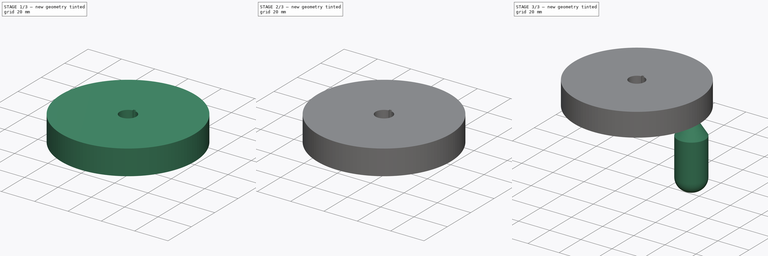
[diagram: build sequence overview — one tinted view per stage of 3, left to right]
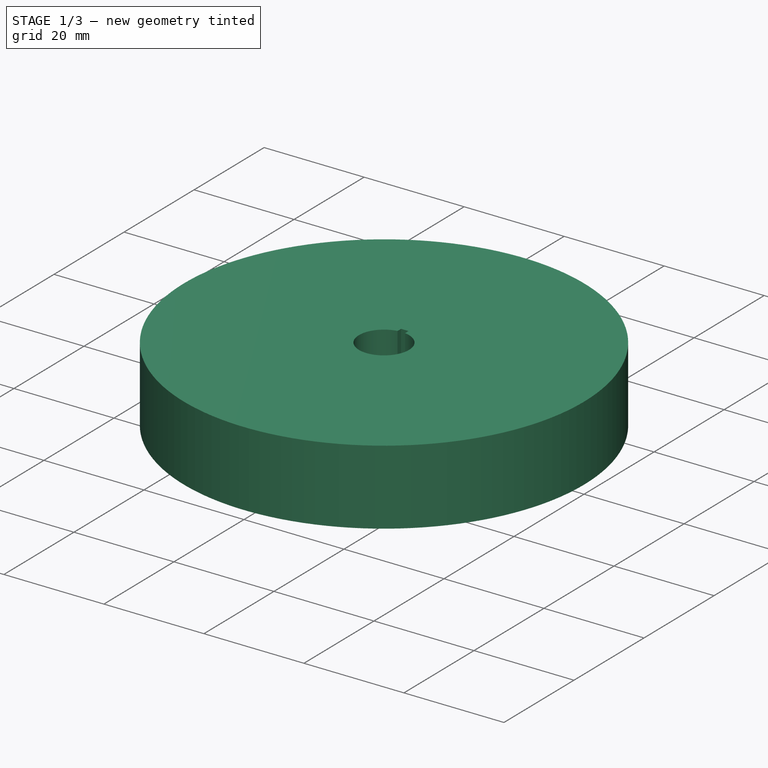
[diagram: stage 1 of 3 — iso view after this stage's code; geometry added in this stage tinted green]
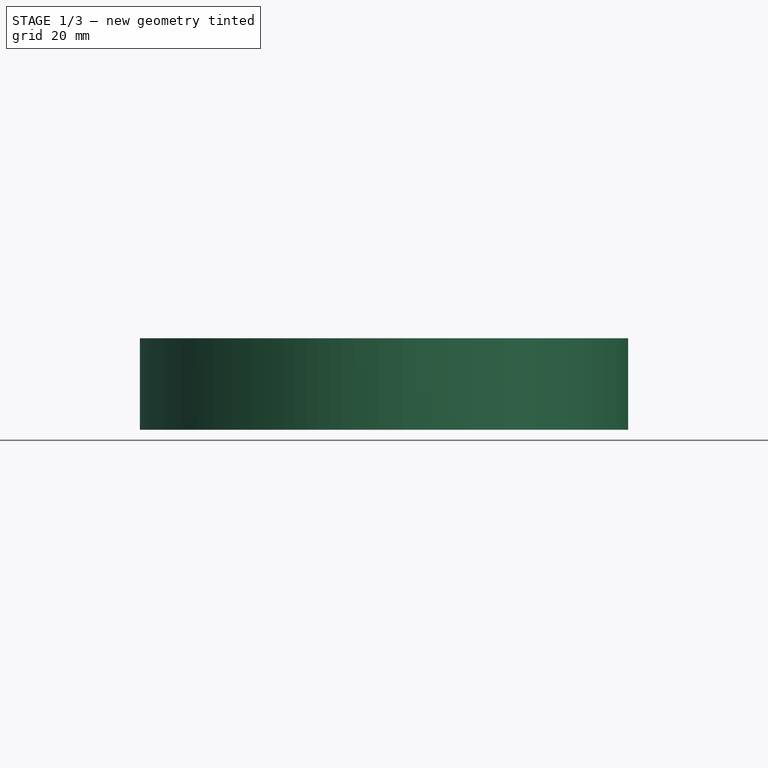
[diagram: stage 1 of 3 — front view after this stage's code; geometry added in this stage tinted green]
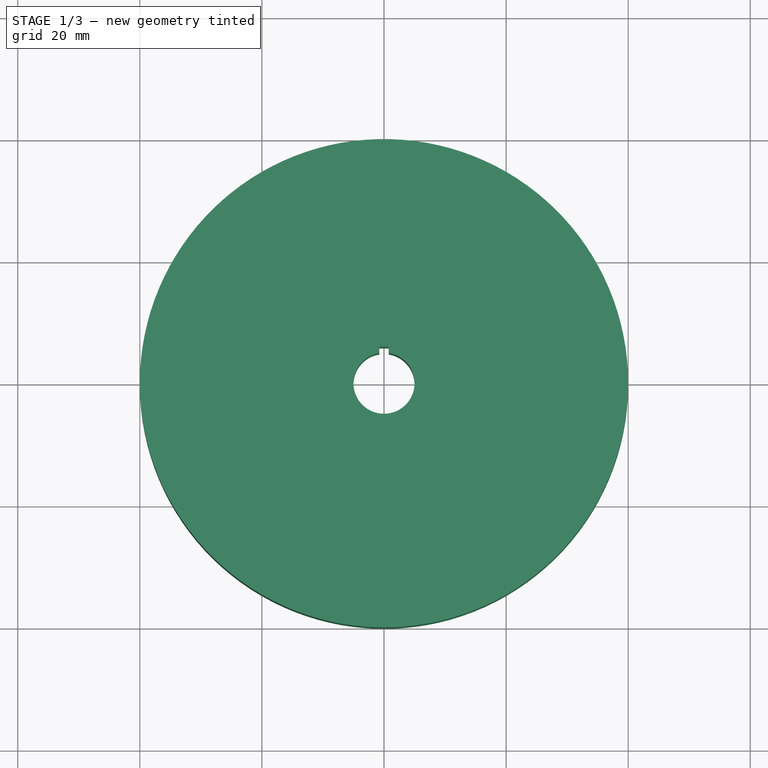
[diagram: stage 1 of 3 — top view after this stage's code; geometry added in this stage tinted green]
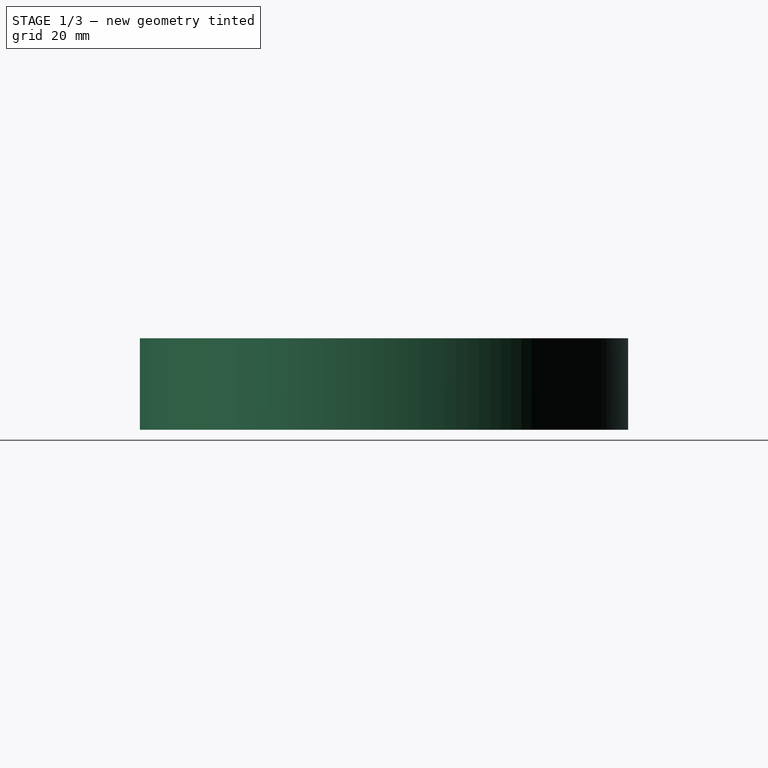
[diagram: stage 1 of 3 — right view after this stage's code; geometry added in this stage tinted green]
FCSTD DOCUMENT  (FreeCAD 0.21R33771 (Git))
Label: Volantino10x80
License: All rights reserved
LicenseURL: http://en.wikipedia.org/wiki/All_rights_reserved
objects: Sketcher::SketchObject×3, PartDesign::Chamfer×2, PartDesign::Pad×1, PartDesign::Pocket×1, PartDesign::Revolution×1, PartDesign::Body×1
note: 14 computed .brp shape members not serialized (recipe doc carries the construction recipe); baked Part::Feature solids carry a one-line shape summary decoded from their .brp

FEATURE [Sketcher::SketchObject] Sketch
  FullyConstrained = true
  MapMode = 5
  Support = -> [XY_Plane]
  sketch-geometry (5):
    g0: Circle CenterX=0 CenterY=0 CenterZ=0 NormalX=0 NormalY=0 NormalZ=1 AngleXU=0 Radius=40
    g1: ArcOfCircle CenterX=0 CenterY=0 CenterZ=0 NormalX=0 NormalY=0 NormalZ=1 AngleXU=0 Radius=5 StartAngle=1.72136 EndAngle=7.70341
    g2: LineSegment StartX=-0.75 StartY=4.94343 StartZ=0 EndX=-0.75 EndY=5.94343 EndZ=0
    g3: LineSegment StartX=-0.75 StartY=5.94343 StartZ=0 EndX=0.75 EndY=5.94343 EndZ=0
    g4: LineSegment StartX=0.75 StartY=5.94343 StartZ=0 EndX=0.75 EndY=4.94343 EndZ=0
  constraints (14):
    c: Coincident(g0,g-1)
    c: Radius(g0) = 40
    c: Coincident(g1,g0)
    c: Radius(g1) = 5
    c: Vertical(g2)
    c: Coincident(g3,g2)
    c: Horizontal(g3)
    c: Coincident(g4,g3)
    c: Vertical(g4)
    c: DistanceX(g3,g3) = 1.5
    c: DistanceY(g4,g4) = 1
    c: Equal(g2,g4)
    c: Coincident(g1,g4)
    c: Coincident(g1,g2)
FEATURE [PartDesign::Pad] Pad
  Direction = (0,0,1)
  Length = 15
  Length2 = 10
  Profile = -> Sketch
  ReferenceAxis = -> Sketch [N_Axis]
  Type = 0
FEATURE [PartDesign::Chamfer] Chamfer
  Angle = 45
  Base = -> Pad
  BaseFeature = -> Pad
  ChamferType = 0
  FlipDirection = false
  Size = 13
  Size2 = 1
  SupportTransform = false
  UseAllEdges = false
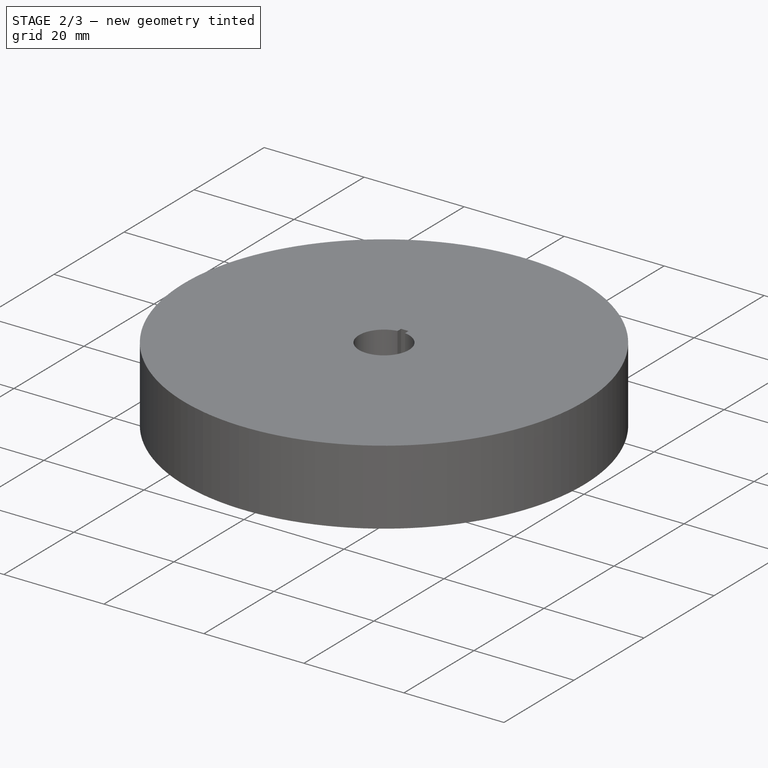
[diagram: stage 2 of 3 — iso view after this stage's code; geometry added in this stage tinted green]
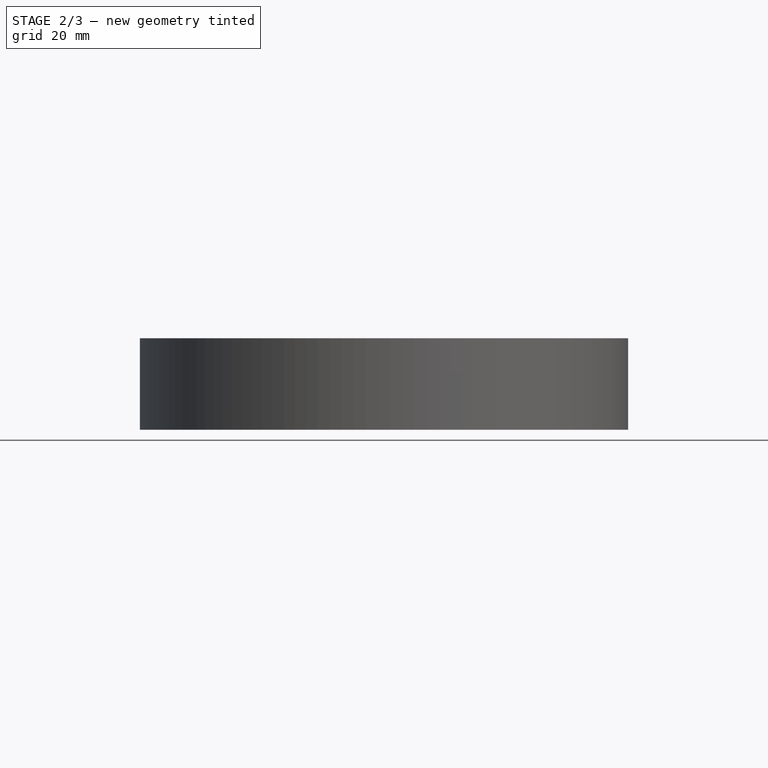
[diagram: stage 2 of 3 — front view after this stage's code; geometry added in this stage tinted green]
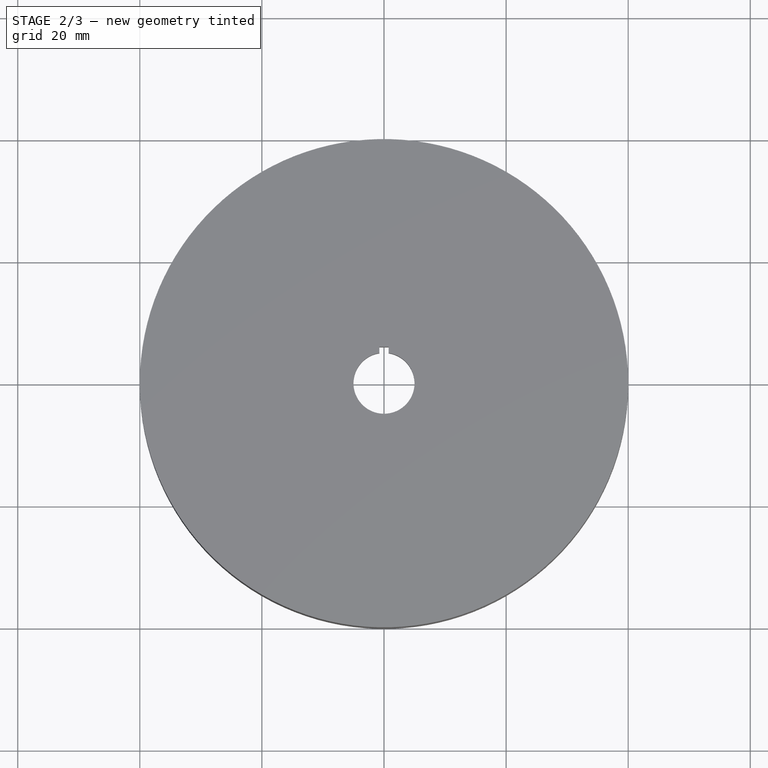
[diagram: stage 2 of 3 — top view after this stage's code; geometry added in this stage tinted green]
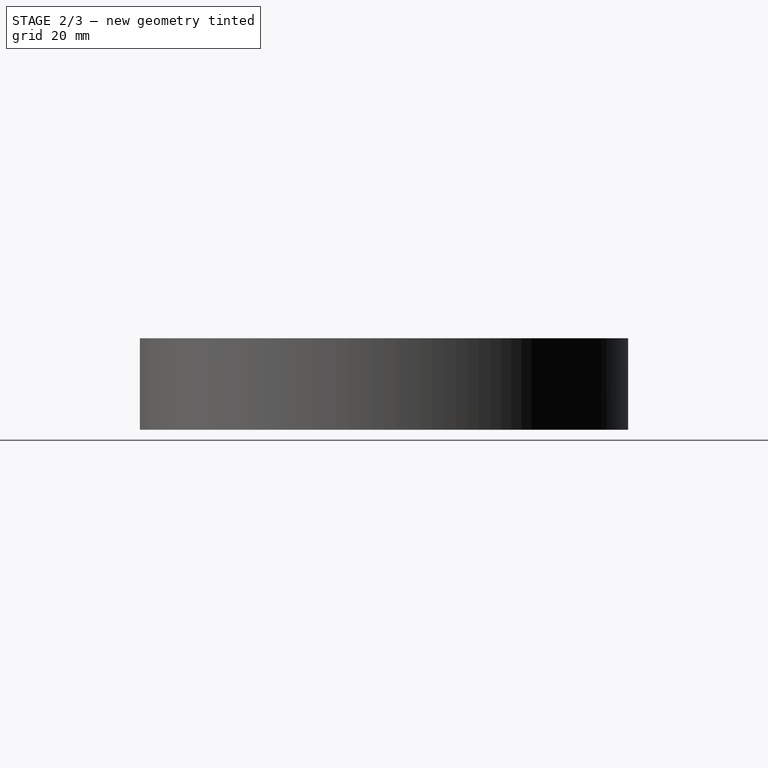
[diagram: stage 2 of 3 — right view after this stage's code; geometry added in this stage tinted green]
FEATURE [Sketcher::SketchObject] Sketch002
  FullyConstrained = false
  MapMode = 5
  Placement = pos=(0,0,0) rot=(1,0,0;1.5708rad)
  Support = -> [XZ_Plane]
  sketch-geometry (7):
    g0: LineSegment StartX=35 StartY=0 StartZ=0 EndX=35 EndY=-40 EndZ=0
    g1: LineSegment StartX=44 StartY=-32 StartZ=0 EndX=44 EndY=-8 EndZ=0
    g2: LineSegment StartX=35 StartY=-40 StartZ=0 EndX=36 EndY=-40 EndZ=0
    g3: ArcOfCircle CenterX=36 CenterY=-32 CenterZ=0 NormalX=0 NormalY=0 NormalZ=1 AngleXU=0 Radius=8 StartAngle=4.71239 EndAngle=6.28319
    g4: LineSegment StartX=35 StartY=24.3816 StartZ=0 EndX=35 EndY=-67.7108 EndZ=0
    g5: LineSegment StartX=39 StartY=0 StartZ=0 EndX=44 EndY=-8 EndZ=0
    g6: LineSegment StartX=35 StartY=0 StartZ=0 EndX=39 EndY=0 EndZ=0
  constraints (19):
    c: PointOnObject(g0,g-1)
    c: Vertical(g0)
    c: Vertical(g1)
    c: DistanceX(g-1,g0) = 35
    c: DistanceY(g0,g0) = 40
    c: DistanceX(g0,g1) = 9
    c: DistanceY(g1,g0) = 8
    c: Coincident(g2,g0)
    c: Horizontal(g2)
    c: Tangent(g1,g3) = -1.5708
    c: Tangent(g2,g3) = -1.5708
    c: DistanceY(g1,g1) = 24
    c: Vertical(g4)
    c: PointOnObject(g0,g4)
    c: Coincident(g5,g1)
    c: Coincident(g6,g0)
    c: Coincident(g6,g5)
    c: Horizontal(g6)
    c: DistanceX(g6,g6) = 4
FEATURE [Sketcher::SketchObject] Sketch003
  FullyConstrained = true
  MapMode = 5
  Placement = pos=(0,0,0) rot=(1,0,0;3.14159rad)
  Support = -> [Chamfer]
  sketch-geometry (1):
    g0: Circle CenterX=0 CenterY=0 CenterZ=0 NormalX=0 NormalY=0 NormalZ=1 AngleXU=0 Radius=20
  constraints (2):
    c: Coincident(g0,g-1)
    c: Radius(g0) = 20
FEATURE [PartDesign::Pocket] Pocket
  BaseFeature = -> Chamfer
  Direction = (0,0,1)
  Length = 10
  Length2 = 5
  Profile = -> Sketch003
  ReferenceAxis = -> Sketch003 [N_Axis]
  Type = 0
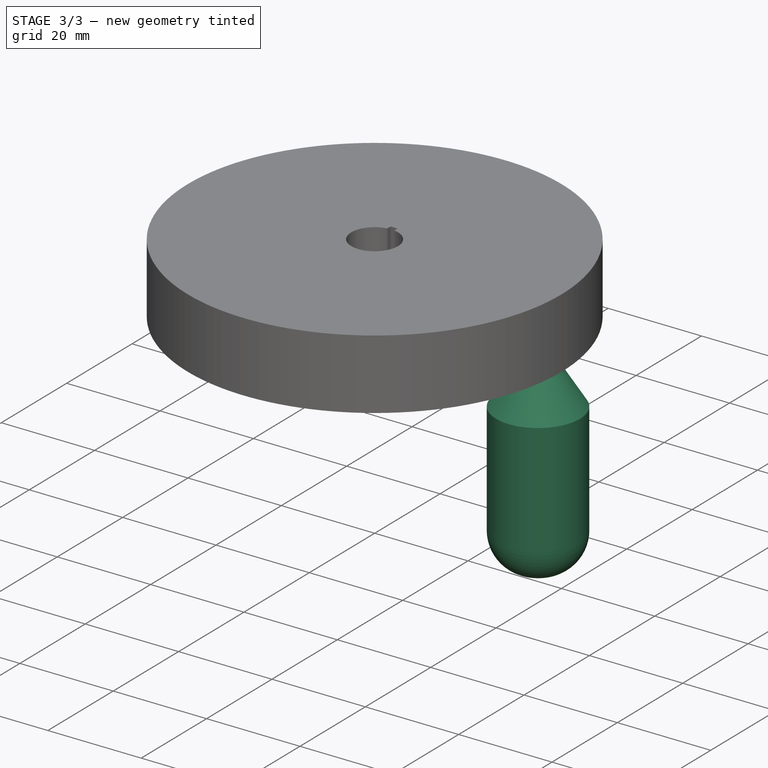
[diagram: stage 3 of 3 — iso view after this stage's code; geometry added in this stage tinted green]
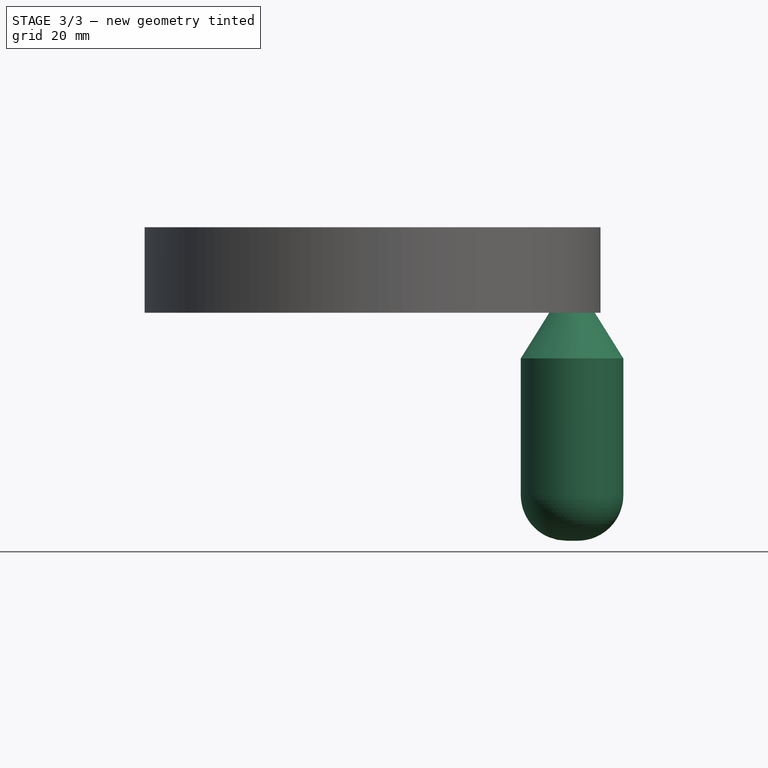
[diagram: stage 3 of 3 — front view after this stage's code; geometry added in this stage tinted green]
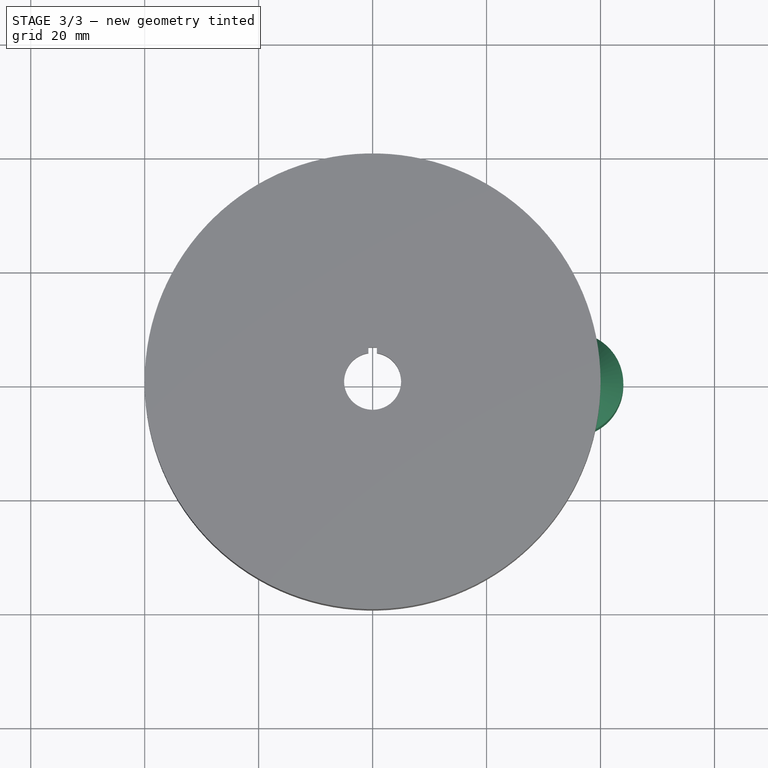
[diagram: stage 3 of 3 — top view after this stage's code; geometry added in this stage tinted green]
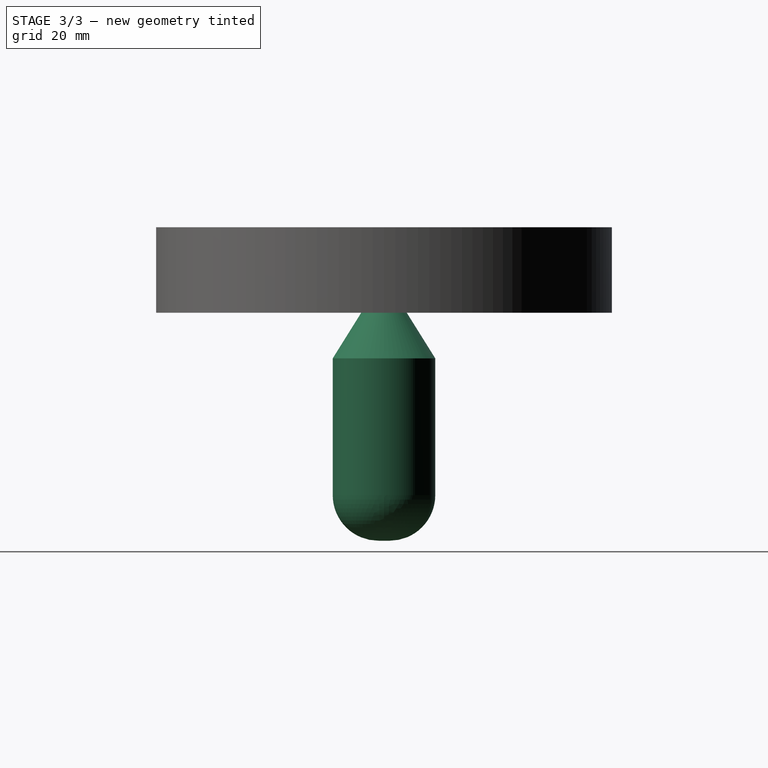
[diagram: stage 3 of 3 — right view after this stage's code; geometry added in this stage tinted green]
FEATURE [PartDesign::Chamfer] Chamfer001
  Angle = 45
  Base = -> Pocket [Edge4]
  BaseFeature = -> Pocket
  ChamferType = 1
  FlipDirection = false
  Size = 12
  Size2 = 8
  SupportTransform = false
  UseAllEdges = false
FEATURE [PartDesign::Revolution] Revolution
  Angle = 360
  Axis = (0,-2e-16,-1)
  Base = (35,0,0)
  BaseFeature = -> Chamfer001
  Profile = -> Sketch002
  ReferenceAxis = -> Sketch002 [Edge1]
  Reversed = true
FEATURE [PartDesign::Body] Body  label="Corpo"
  Group = -> [Sketch,Pad,Chamfer,Sketch002,Sketch003,Pocket,Chamfer001,Revolution]
  Origin = -> Origin
  Tip = -> Revolution
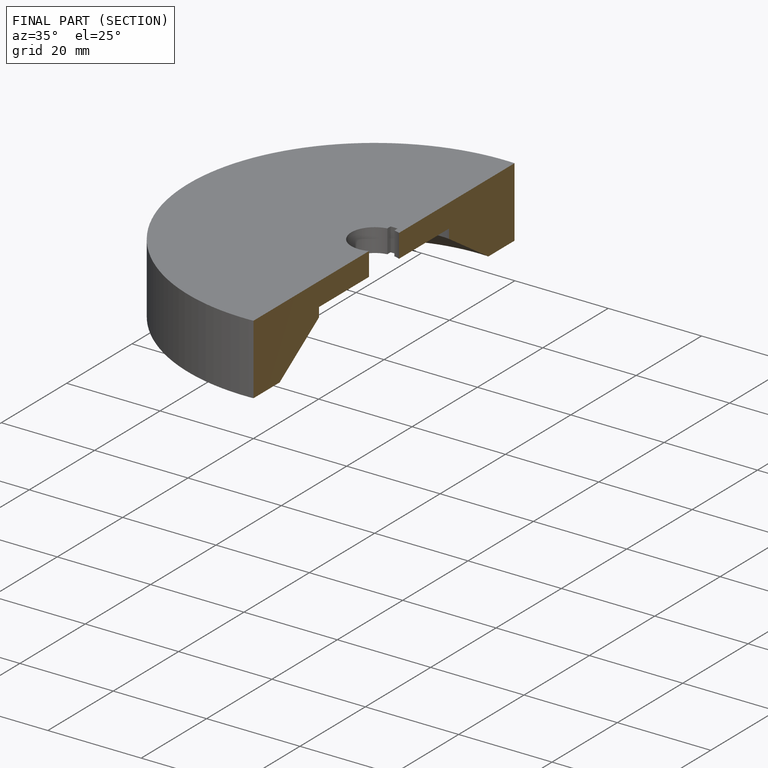
[diagram: finished part — half-section view (interior)]
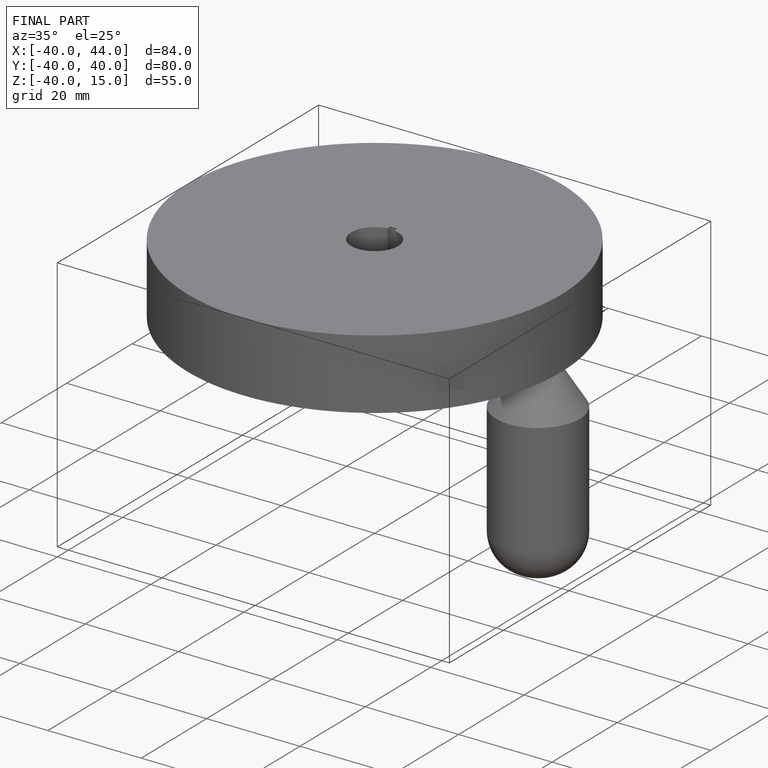
[diagram: finished part — iso view with bounding-box wireframe]
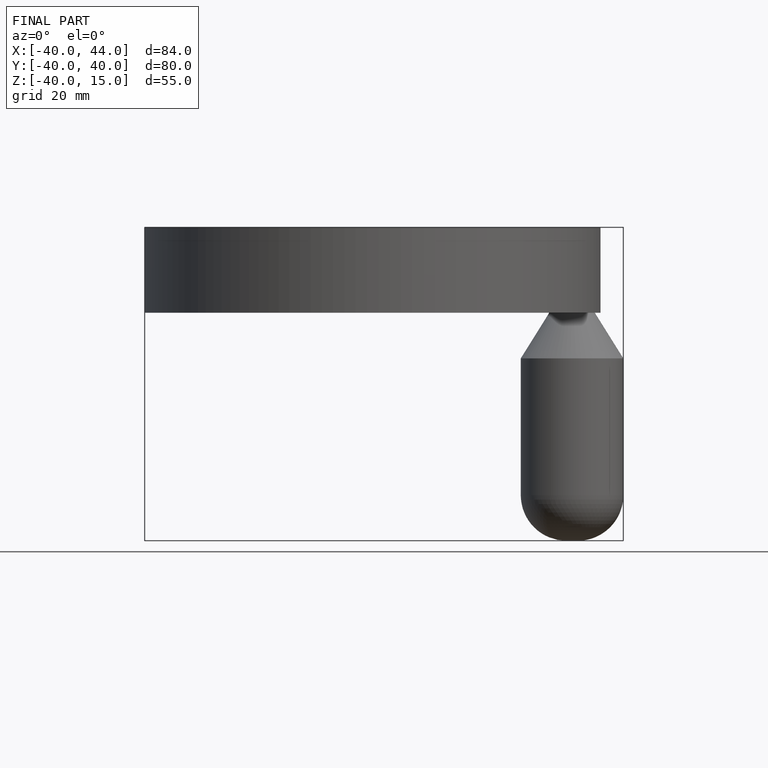
[diagram: finished part — front view with bounding-box wireframe]
